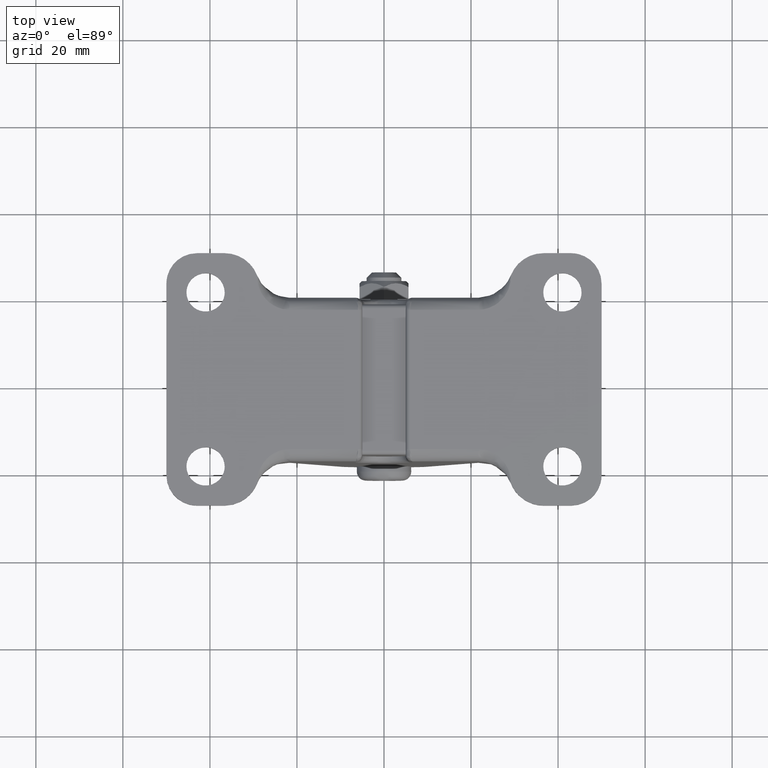
[diagram: clean part render]
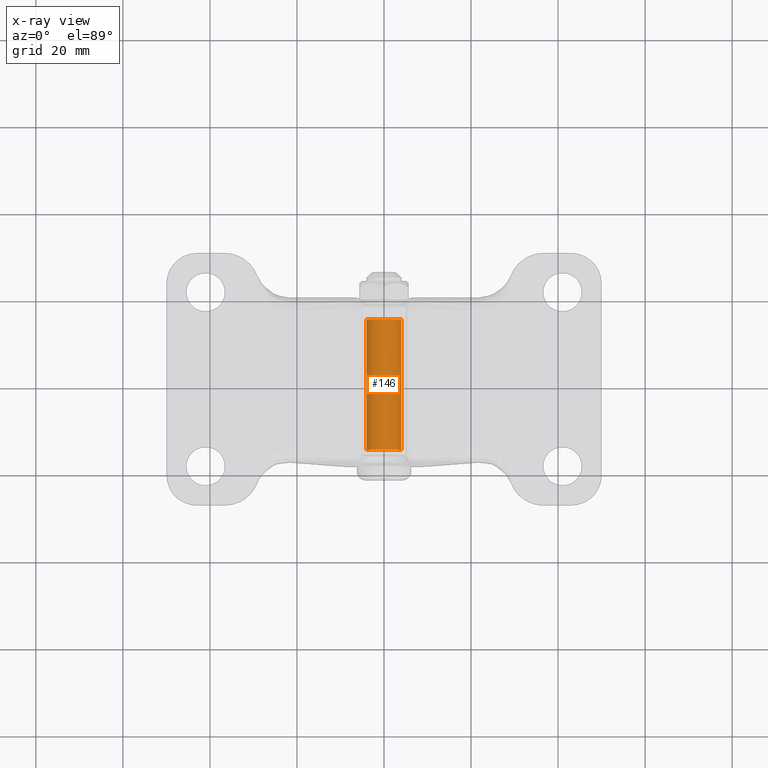
[diagram: x-ray — body ghosted, one internal face saturated and labeled with its STEP entity id]
A machine part, top view, then the same camera in x-ray: the body is ghosted and one INTERNAL B-rep face — a face not visible from any outside direction — is saturated and labeled: STEP entity #146.
In plain terms, the highlighted face is a freeform B-spline surface patch.
Its self-contained STEP definition (entity closure, byte-faithful):
#44=CARTESIAN_POINT('',(3.972038105454666,15.750000000000005,-0.472120938627129));
#45=CARTESIAN_POINT('',(3.985550461794422,15.750000000000007,-0.358442914552006));
#46=CARTESIAN_POINT('',(3.992539193687467,15.750000000000000,-0.244178158139523));
#47=CARTESIAN_POINT('',(4.236733351826894,15.750000000000009,3.748361035547944));
#48=CARTESIAN_POINT('',(0.244194158139428,15.750000000000000,3.992555193687371));
#49=CARTESIAN_POINT('',(-3.748345035548039,15.750000000000009,4.236749351826800));
#50=CARTESIAN_POINT('',(-3.992539193687467,15.750000000000000,0.244210158139333));
#51=CARTESIAN_POINT('',(3.972038105454666,-15.768750000000006,-0.472120938627129));
#52=CARTESIAN_POINT('',(3.985550461794422,-15.768750000000006,-0.358442914552006));
#53=CARTESIAN_POINT('',(3.992539193687467,-15.768750000000001,-0.244178158139523));
#54=CARTESIAN_POINT('',(4.236733351826894,-15.768749999999997,3.748361035547944));
#55=CARTESIAN_POINT('',(0.244194158139428,-15.768750000000001,3.992555193687371));
#56=CARTESIAN_POINT('',(-3.748345035548039,-15.768749999999997,4.236749351826800));
#57=CARTESIAN_POINT('',(-3.992539193687467,-15.768750000000001,0.244210158139333));
#65=(BOUNDED_SURFACE()B_SPLINE_SURFACE(2,1,((#44,#51),(#45,#52),(#46,#53),(#47,#54),(#48,#55),(#49,#56),(#50,#57)),.UNSPECIFIED.,.F.,.F.,.U.)B_SPLINE_SURFACE_WITH_KNOTS((3,2,2,3),(2,2),(0.0,0.265096679918781,6.892513677888302,13.519930675857820),(0.0,31.518750000000011),.UNSPECIFIED.)GEOMETRIC_REPRESENTATION_ITEM()RATIONAL_B_SPLINE_SURFACE(((0.977505800795127,0.977505800795127),(0.988284271247462,0.988284271247462),(1.0,1.0),(0.707106781186548,0.707106781186548),(1.0,1.0),(0.707106781186548,0.707106781186548),(1.0,1.0)))REPRESENTATION_ITEM('')SURFACE());
#66=CARTESIAN_POINT('',(3.972038105431140,15.0,-0.472120938825049));
#67=VERTEX_POINT('',#66);
#68=CARTESIAN_POINT('',(0.0,15.0,4.000015999999905));
#69=VERTEX_POINT('',#68);
#70=CARTESIAN_POINT('',(3.972038105431140,15.000000000000005,-0.472120938825049));
#71=CARTESIAN_POINT('',(4.0,14.999999999999996,-0.236880478807747));
#72=CARTESIAN_POINT('',(4.0,15.0,0.000015999999905));
#73=CARTESIAN_POINT('',(4.000000000000000,14.999999999999995,4.000015999999905));
#74=CARTESIAN_POINT('',(0.0,15.0,4.000015999999905));
#82=(BOUNDED_CURVE()B_SPLINE_CURVE(2,(#70,#71,#72,#73,#74),.UNSPECIFIED.,.F.,.U.)B_SPLINE_CURVE_WITH_KNOTS((3,2,3),(0.229562473498802,0.250000000000000,0.500000000000000),.UNSPECIFIED.)CURVE()GEOMETRIC_REPRESENTATION_ITEM()RATIONAL_B_SPLINE_CURVE((0.956026754154874,0.976055948313916,1.0,0.707106781186548,1.0))REPRESENTATION_ITEM(''));
#83=EDGE_CURVE('',#67,#69,#82,.T.);
#84=ORIENTED_EDGE('',*,*,#83,.F.);
#85=CARTESIAN_POINT('',(3.972038105431140,-15.0,-0.472120938825049));
#86=VERTEX_POINT('',#85);
#87=CARTESIAN_POINT('',(3.972038105431140,15.0,-0.472120938825049));
#88=CARTESIAN_POINT('',(3.972038105431140,-15.0,-0.472120938825049));
#89=QUASI_UNIFORM_CURVE('',1,(#87,#88),.UNSPECIFIED.,.F.,.U.);
#90=EDGE_CURVE('',#67,#86,#89,.T.);
#91=ORIENTED_EDGE('',*,*,#90,.T.);
#92=CARTESIAN_POINT('',(0.0,-15.0,4.000015999999905));
#93=VERTEX_POINT('',#92);
#94=CARTESIAN_POINT('',(3.972038105431140,-15.000000000000005,-0.472120938825048));
#95=CARTESIAN_POINT('',(4.0,-14.999999999999996,-0.236880478807747));
#96=CARTESIAN_POINT('',(4.0,-15.0,0.000015999999905));
#97=CARTESIAN_POINT('',(4.000000000000000,-14.999999999999995,4.000015999999905));
#98=CARTESIAN_POINT('',(0.0,-15.0,4.000015999999905));
#106=(BOUNDED_CURVE()B_SPLINE_CURVE(2,(#94,#95,#96,#97,#98),.UNSPECIFIED.,.F.,.U.)B_SPLINE_CURVE_WITH_KNOTS((3,2,3),(0.229562473498802,0.250000000000000,0.500000000000000),.UNSPECIFIED.)CURVE()GEOMETRIC_REPRESENTATION_ITEM()RATIONAL_B_SPLINE_CURVE((0.956026754154874,0.976055948313916,1.0,0.707106781186548,1.0))REPRESENTATION_ITEM(''));
#107=EDGE_CURVE('',#86,#93,#106,.T.);
#108=ORIENTED_EDGE('',*,*,#107,.T.);
#109=CARTESIAN_POINT('',(-3.992539264450486,-15.0,0.244209001168709));
#110=VERTEX_POINT('',#109);
#111=CARTESIAN_POINT('',(0.0,-15.0,4.000015999999905));
#112=CARTESIAN_POINT('',(-3.762825360063638,-15.000000000000005,4.000015999999905));
#113=CARTESIAN_POINT('',(-3.992539264450486,-14.999999999999993,0.244209001168709));
#121=(BOUNDED_CURVE()B_SPLINE_CURVE(2,(#111,#112,#113),.UNSPECIFIED.,.F.,.U.)B_SPLINE_CURVE_WITH_KNOTS((3,3),(0.500000000000000,0.739333012243124),.UNSPECIFIED.)CURVE()GEOMETRIC_REPRESENTATION_ITEM()RATIONAL_B_SPLINE_CURVE((1.0,0.719603934703168,0.976072148835220))REPRESENTATION_ITEM(''));
#122=EDGE_CURVE('',#93,#110,#121,.T.);
#123=ORIENTED_EDGE('',*,*,#122,.T.);
#124=CARTESIAN_POINT('',(-3.992539265310134,15.0,0.244208987113448));
#125=VERTEX_POINT('',#124);
#126=CARTESIAN_POINT('',(-3.992539265310134,15.0,0.244208987113448));
#127=CARTESIAN_POINT('',(-3.992539264450486,-15.0,0.244209001168709));
#128=QUASI_UNIFORM_CURVE('',1,(#126,#127),.UNSPECIFIED.,.F.,.U.);
#129=EDGE_CURVE('',#125,#110,#128,.T.);
#130=ORIENTED_EDGE('',*,*,#129,.F.);
#131=CARTESIAN_POINT('',(0.0,15.0,4.000015999999905));
#132=CARTESIAN_POINT('',(-3.762825373334971,15.000000000000004,4.000015999999904));
#133=CARTESIAN_POINT('',(-3.992539265310134,14.999999999999998,0.244208987113449));
#141=(BOUNDED_CURVE()B_SPLINE_CURVE(2,(#131,#132,#133),.UNSPECIFIED.,.F.,.U.)B_SPLINE_CURVE_WITH_KNOTS((3,3),(0.500000000000000,0.739333012850555),.UNSPECIFIED.)CURVE()GEOMETRIC_REPRESENTATION_ITEM()RATIONAL_B_SPLINE_CURVE((1.0,0.719603933991519,0.976072150137060))REPRESENTATION_ITEM(''));
#142=EDGE_CURVE('',#69,#125,#141,.T.);
#143=ORIENTED_EDGE('',*,*,#142,.F.);
#144=EDGE_LOOP('',(#84,#91,#108,#123,#130,#143));
#145=FACE_OUTER_BOUND('',#144,.T.);
#146=ADVANCED_FACE('',(#145),#65,.F.);